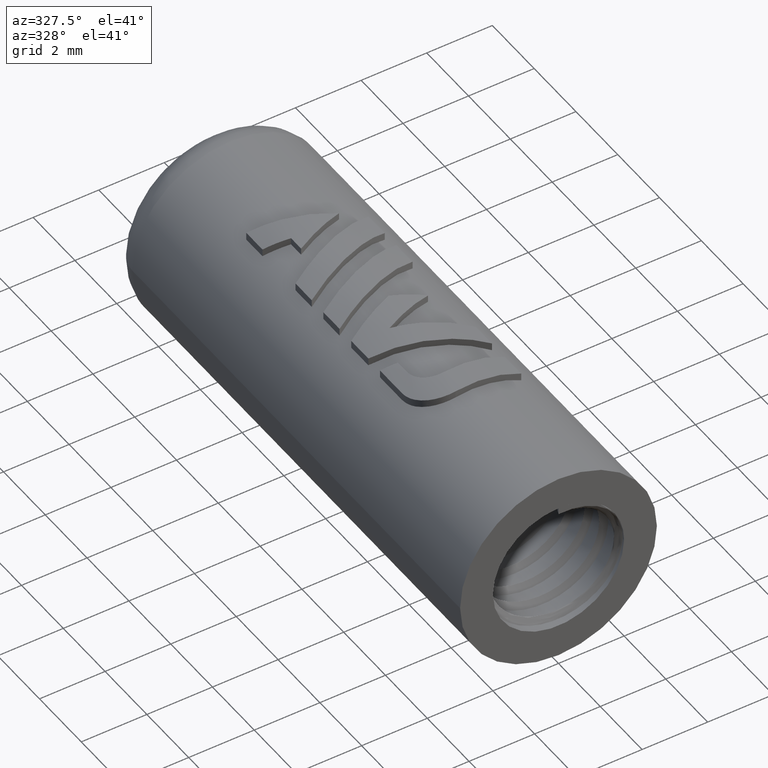
[diagram: clean part render]
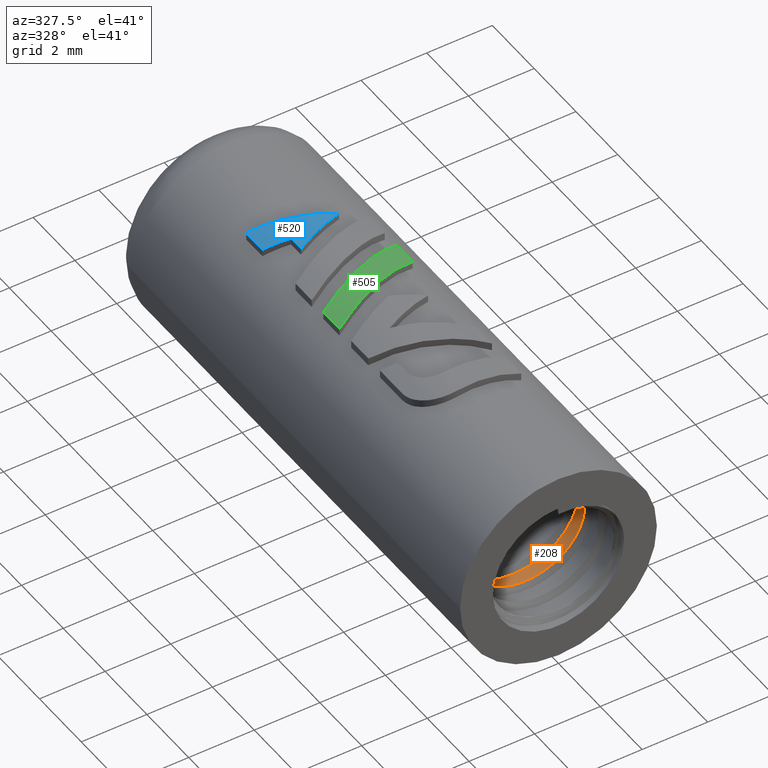
[diagram: same view with three faces highlighted in distinct colors, each labeled with its STEP entity id]
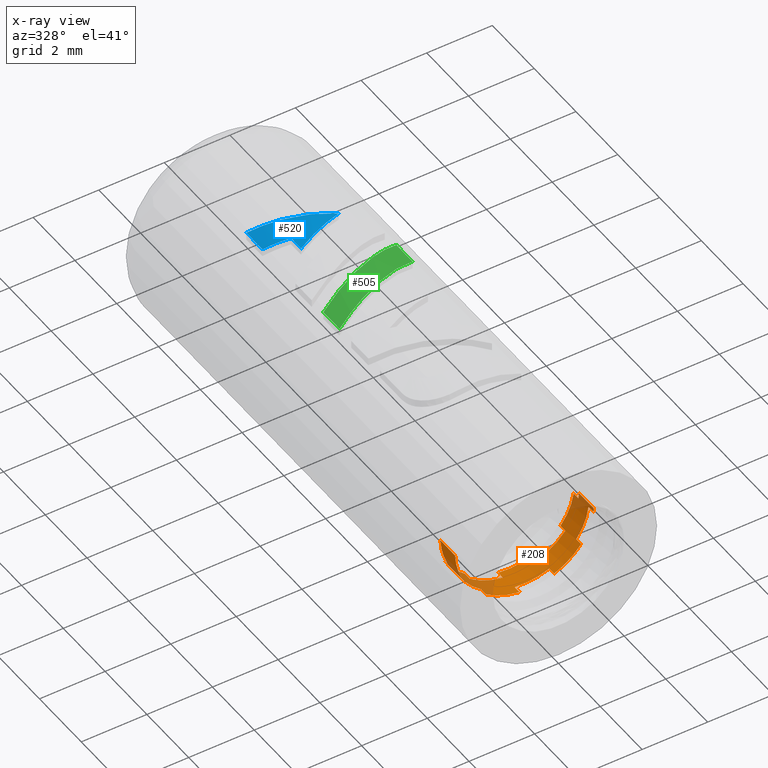
[diagram: x-ray of the same camera — body ghosted, the three highlighted faces saturated]
A machine part, auxiliary view with three faces highlighted in distinct colors.
The next image is the same camera in x-ray (body ghosted, the three faces saturated) — at least one of them is partly hidden behind the body in this view.
Their STEP definitions:

[orange] entity #208 — the highlighted cylindrical surface (partial cylindrical patch) has radius 2 mm, axis along (-0, 1, 0).
#208=ADVANCED_FACE('',(#698),#699,.F.);
#698=FACE_OUTER_BOUND('',#1504,.T.);
#699=CYLINDRICAL_SURFACE('',#1505,2.0);
#1504=EDGE_LOOP('',(#7025,#7026,#7027,#7028,#7029,#7030,#7031,#7032,#7033,#7034,#7035,#7036,#7037,#7038,#7039,#7040,#7041,#7042,#7043,#7044,#7045,#7046,#7047,#7048,#7049,#7050,#7051,#7052));
#1505=AXIS2_PLACEMENT_3D('',#7053,#7054,#7055);
#7025=ORIENTED_EDGE('',*,*,#9798,.F.);
#7026=ORIENTED_EDGE('',*,*,#9797,.T.);
#7027=ORIENTED_EDGE('',*,*,#9796,.F.);
#7028=ORIENTED_EDGE('',*,*,#9795,.F.);
#7029=ORIENTED_EDGE('',*,*,#9794,.T.);
#7030=ORIENTED_EDGE('',*,*,#9793,.T.);
#7031=ORIENTED_EDGE('',*,*,#9792,.F.);
#7032=ORIENTED_EDGE('',*,*,#9791,.F.);
#7033=ORIENTED_EDGE('',*,*,#9790,.T.);
#7034=ORIENTED_EDGE('',*,*,#9789,.T.);
#7035=ORIENTED_EDGE('',*,*,#9788,.F.);
#7036=ORIENTED_EDGE('',*,*,#9787,.F.);
#7037=ORIENTED_EDGE('',*,*,#9786,.T.);
#7038=ORIENTED_EDGE('',*,*,#9785,.T.);
#7039=ORIENTED_EDGE('',*,*,#9784,.F.);
#7040=ORIENTED_EDGE('',*,*,#9813,.F.);
#7041=ORIENTED_EDGE('',*,*,#9814,.F.);
#7042=ORIENTED_EDGE('',*,*,#9815,.T.);
#7043=ORIENTED_EDGE('',*,*,#9816,.T.);
#7044=ORIENTED_EDGE('',*,*,#9817,.F.);
#7045=ORIENTED_EDGE('',*,*,#9818,.F.);
#7046=ORIENTED_EDGE('',*,*,#9819,.T.);
#7047=ORIENTED_EDGE('',*,*,#9820,.T.);
#7048=ORIENTED_EDGE('',*,*,#9821,.F.);
#7049=ORIENTED_EDGE('',*,*,#9822,.F.);
#7050=ORIENTED_EDGE('',*,*,#9823,.T.);
#7051=ORIENTED_EDGE('',*,*,#9824,.T.);
#7052=ORIENTED_EDGE('',*,*,#9825,.F.);
#7053=CARTESIAN_POINT('',(0.0,0.0,0.0));
#7054=DIRECTION('',(-0.0,1.0,0.0));
#7055=DIRECTION('',(1.0,0.0,-6.12323399573677E-17));
#9784=EDGE_CURVE('',#11954,#11900,#11956,.T.);
#9785=EDGE_CURVE('',#11957,#11900,#11958,.T.);
#9786=EDGE_CURVE('',#11959,#11957,#11960,.T.);
#9787=EDGE_CURVE('',#11959,#11961,#11962,.T.);
#9788=EDGE_CURVE('',#11961,#11963,#11964,.T.);
#9789=EDGE_CURVE('',#11965,#11963,#11966,.T.);
#9790=EDGE_CURVE('',#11967,#11965,#11968,.T.);
#9791=EDGE_CURVE('',#11967,#11969,#11970,.T.);
#9792=EDGE_CURVE('',#11969,#11971,#11972,.T.);
#9793=EDGE_CURVE('',#11973,#11971,#11974,.T.);
#9794=EDGE_CURVE('',#11975,#11973,#11976,.T.);
#9795=EDGE_CURVE('',#11975,#11977,#11978,.T.);
#9796=EDGE_CURVE('',#11977,#11979,#11980,.T.);
#9797=EDGE_CURVE('',#11928,#11979,#11981,.T.);
#9798=EDGE_CURVE('',#11928,#11982,#11983,.T.);
#9813=EDGE_CURVE('',#12011,#11954,#12012,.T.);
#9814=EDGE_CURVE('',#12013,#12011,#12014,.T.);
#9815=EDGE_CURVE('',#12013,#12015,#12016,.T.);
#9816=EDGE_CURVE('',#12015,#12017,#12018,.T.);
#9817=EDGE_CURVE('',#12019,#12017,#12020,.T.);
#9818=EDGE_CURVE('',#12021,#12019,#12022,.T.);
#9819=EDGE_CURVE('',#12021,#12023,#12024,.T.);
#9820=EDGE_CURVE('',#12023,#12025,#12026,.T.);
#9821=EDGE_CURVE('',#12027,#12025,#12028,.T.);
#9822=EDGE_CURVE('',#12029,#12027,#12030,.T.);
#9823=EDGE_CURVE('',#12029,#12031,#12032,.T.);
#9824=EDGE_CURVE('',#12031,#12033,#12034,.T.);
#9825=EDGE_CURVE('',#11982,#12033,#12035,.T.);
#11900=VERTEX_POINT('',#15809);
#11928=VERTEX_POINT('',#15868);
#11954=VERTEX_POINT('',#15919);
#11956=LINE('',#15924,#15925);
#11957=VERTEX_POINT('',#15926);
#11958=B_SPLINE_CURVE_WITH_KNOTS('',3,(#15927,#15928,#15929,#15930),.UNSPECIFIED.,.F.,.F.,(4,4),(0.0,1.0),.UNSPECIFIED.);
#11959=VERTEX_POINT('',#15931);
#11960=LINE('',#15932,#15933);
#11961=VERTEX_POINT('',#15934);
#11962=B_SPLINE_CURVE_WITH_KNOTS('',3,(#15935,#15936,#15937,#15938),.UNSPECIFIED.,.F.,.F.,(4,4),(0.0,1.0),.UNSPECIFIED.);
#11963=VERTEX_POINT('',#15939);
#11964=LINE('',#15940,#15941);
#11965=VERTEX_POINT('',#15942);
#11966=B_SPLINE_CURVE_WITH_KNOTS('',3,(#15943,#15944,#15945,#15946),.UNSPECIFIED.,.F.,.F.,(4,4),(0.0,1.0),.UNSPECIFIED.);
#11967=VERTEX_POINT('',#15947);
#11968=LINE('',#15948,#15949);
#11969=VERTEX_POINT('',#15950);
#11970=B_SPLINE_CURVE_WITH_KNOTS('',3,(#15951,#15952,#15953,#15954),.UNSPECIFIED.,.F.,.F.,(4,4),(0.0,1.0),.UNSPECIFIED.);
#11971=VERTEX_POINT('',#15955);
#11972=LINE('',#15956,#15957);
#11973=VERTEX_POINT('',#15958);
#11974=B_SPLINE_CURVE_WITH_KNOTS('',3,(#15959,#15960,#15961,#15962),.UNSPECIFIED.,.F.,.F.,(4,4),(0.0,1.0),.UNSPECIFIED.);
#11975=VERTEX_POINT('',#15963);
#11976=LINE('',#15964,#15965);
#11977=VERTEX_POINT('',#15966);
#11978=B_SPLINE_CURVE_WITH_KNOTS('',3,(#15967,#15968,#15969,#15970),.UNSPECIFIED.,.F.,.F.,(4,4),(0.0,1.0),.UNSPECIFIED.);
#11979=VERTEX_POINT('',#15971);
#11980=LINE('',#15972,#15973);
#11981=B_SPLINE_CURVE_WITH_KNOTS('',3,(#15974,#15975,#15976,#15977),.UNSPECIFIED.,.F.,.F.,(4,4),(0.0,1.0),.UNSPECIFIED.);
#11982=VERTEX_POINT('',#15978);
#11983=LINE('',#15979,#15980);
#12011=VERTEX_POINT('',#16036);
#12012=B_SPLINE_CURVE_WITH_KNOTS('',3,(#16037,#16038,#16039,#16040),.UNSPECIFIED.,.F.,.F.,(4,4),(0.0,1.0),.UNSPECIFIED.);
#12013=VERTEX_POINT('',#16041);
#12014=LINE('',#16042,#16043);
#12015=VERTEX_POINT('',#16044);
#12016=B_SPLINE_CURVE_WITH_KNOTS('',3,(#16045,#16046,#16047,#16048),.UNSPECIFIED.,.F.,.F.,(4,4),(0.0,1.0),.UNSPECIFIED.);
#12017=VERTEX_POINT('',#16049);
#12018=LINE('',#16050,#16051);
#12019=VERTEX_POINT('',#16052);
#12020=B_SPLINE_CURVE_WITH_KNOTS('',3,(#16053,#16054,#16055,#16056),.UNSPECIFIED.,.F.,.F.,(4,4),(0.0,1.0),.UNSPECIFIED.);
#12021=VERTEX_POINT('',#16057);
#12022=LINE('',#16058,#16059);
#12023=VERTEX_POINT('',#16060);
#12024=B_SPLINE_CURVE_WITH_KNOTS('',3,(#16061,#16062,#16063,#16064),.UNSPECIFIED.,.F.,.F.,(4,4),(0.0,1.0),.UNSPECIFIED.);
#12025=VERTEX_POINT('',#16065);
#12026=LINE('',#16066,#16067);
#12027=VERTEX_POINT('',#16068);
#12028=B_SPLINE_CURVE_WITH_KNOTS('',3,(#16069,#16070,#16071,#16072),.UNSPECIFIED.,.F.,.F.,(4,4),(0.0,1.0),.UNSPECIFIED.);
#12029=VERTEX_POINT('',#16073);
#12030=LINE('',#16074,#16075);
#12031=VERTEX_POINT('',#16076);
#12032=B_SPLINE_CURVE_WITH_KNOTS('',3,(#16077,#16078,#16079,#16080),.UNSPECIFIED.,.F.,.F.,(4,4),(0.0,1.0),.UNSPECIFIED.);
#12033=VERTEX_POINT('',#16081);
#12034=LINE('',#16082,#16083);
#12035=B_SPLINE_CURVE_WITH_KNOTS('',3,(#16084,#16085,#16086,#16087),.UNSPECIFIED.,.F.,.F.,(4,4),(0.0,1.0),.UNSPECIFIED.);
#15809=CARTESIAN_POINT('',(-1.99983372703837,2.50952863046522,-1.47962922127108E-16));
#15868=CARTESIAN_POINT('',(1.99986662803466,2.15952877320998,1.3755659054943E-16));
#15919=CARTESIAN_POINT('',(-1.99989826058669,1.80952894795316,-1.34087110089378E-16));
#15924=CARTESIAN_POINT('',(-2.0,0.0,-1.22463677939047E-16));
#15925=VECTOR('',#20649,1.0);
#15926=CARTESIAN_POINT('',(-1.82731383372085,2.46289366147425,-0.81297241841549));
#15927=CARTESIAN_POINT('',(-1.82731383371829,2.46289366147427,-0.812972418413912));
#15928=CARTESIAN_POINT('',(-1.96985092419549,2.48242671992335,-0.492592549001985));
#15929=CARTESIAN_POINT('',(-2.02606181120273,2.50195977837243,-0.134289314809611));
#15930=CARTESIAN_POINT('',(-1.98848059676843,2.52149283682151,0.21434765283403));
#15931=CARTESIAN_POINT('',(-1.82731154181639,2.69383376908127,-0.812977569897545));
#15932=CARTESIAN_POINT('',(-1.82731154181374,0.0,-0.812977569896183));
#15933=VECTOR('',#20650,1000.0);
#15934=CARTESIAN_POINT('',(-1.1721459073758,2.63523459373407,-1.62051657561226));
#15935=CARTESIAN_POINT('',(-1.82731154181374,2.69383376908127,-0.812977569896181));
#15936=CARTESIAN_POINT('',(-1.68477354813583,2.6743007106322,-1.13335703747225));
#15937=CARTESIAN_POINT('',(-1.45626836039393,2.65476765218312,-1.41500619977498));
#15938=CARTESIAN_POINT('',(-1.17214590737379,2.63523459373405,-1.62051657561003));
#15939=CARTESIAN_POINT('',(-1.17215047586269,2.40429448612707,-1.62051327114184));
#15940=CARTESIAN_POINT('',(-1.17214590737384,0.0,-1.62051657561));
#15941=VECTOR('',#20651,1000.0);
#15942=CARTESIAN_POINT('',(-0.200107590801621,2.34569531077981,-1.9899640579959));
#15943=CARTESIAN_POINT('',(-0.200107590801812,2.34569531077984,-1.98996405799288));
#15944=CARTESIAN_POINT('',(-0.549004651213574,2.36522836922892,-1.95487952974906));
#15945=CARTESIAN_POINT('',(-0.888028602207985,2.38476142767799,-1.82602444795972));
#15946=CARTESIAN_POINT('',(-1.17215047586086,2.40429448612707,-1.62051327113948));
#15947=CARTESIAN_POINT('',(-0.200101980779584,2.57663541838687,-1.98996462212272));
#15948=CARTESIAN_POINT('',(-0.200101980778565,0.0,-1.98996462211983));
#15949=VECTOR('',#20652,1000.0);
#15950=CARTESIAN_POINT('',(0.826037578048162,2.51803624303962,-1.82144500868521));
#15951=CARTESIAN_POINT('',(-0.200101980778541,2.57663541838683,-1.98996462211983));
#15952=CARTESIAN_POINT('',(0.148795178540574,2.55710235993775,-2.02504816676767));
#15953=CARTESIAN_POINT('',(0.506686679884777,2.53756930148868,-1.96627279168312));
#15954=CARTESIAN_POINT('',(0.826037578047128,2.51803624303961,-1.8214450086824));
#15955=CARTESIAN_POINT('',(0.826032443104735,2.28709613543261,-1.82144733740791));
#15956=CARTESIAN_POINT('',(0.826037578047114,0.0,-1.82144500868241));
#15957=VECTOR('',#20653,1000.0);
#15958=CARTESIAN_POINT('',(1.62886260731935,2.22849696008537,-1.16051997246439));
#15959=CARTESIAN_POINT('',(1.62886260731662,2.22849696008539,-1.16051997246307));
#15960=CARTESIAN_POINT('',(1.4253905871487,2.24803001853446,-1.44610572122299));
#15961=CARTESIAN_POINT('',(1.14538374955688,2.26756307698353,-1.67662045470554));
#15962=CARTESIAN_POINT('',(0.826032443103506,2.2870961354326,-1.82144733740519));
#15963=CARTESIAN_POINT('',(1.62886587900088,2.45943706769242,-1.16051538044035));
#15964=CARTESIAN_POINT('',(1.62886587899875,0.0,-1.1605153804382));
#15965=VECTOR('',#20654,1000.0);
#15966=CARTESIAN_POINT('',(1.99134606745329,2.40083789234516,-0.185851660337524));
#15967=CARTESIAN_POINT('',(1.62886587899883,2.45943706769239,-1.16051538043809));
#15968=CARTESIAN_POINT('',(1.8323370940548,2.43990400924331,-0.874929058059502));
#15969=CARTESIAN_POINT('',(1.95876100758261,2.42037095079424,-0.534991026149068));
#15970=CARTESIAN_POINT('',(1.99134606745033,2.40083789234516,-0.185851660337218));
#15971=CARTESIAN_POINT('',(1.99134554350028,2.16989778473816,-0.185857274254947));
#15972=CARTESIAN_POINT('',(1.99134606745032,0.0,-0.185851660337329));
#15973=VECTOR('',#20655,1000.0);
#15974=CARTESIAN_POINT('',(1.81548750101265,2.11129860939097,0.839050137755101));
#15975=CARTESIAN_POINT('',(1.96259675428025,2.13083166784003,0.520743759419717));
#15976=CARTESIAN_POINT('',(2.02393158764376,2.1503647262891,0.163281999692984));
#15977=CARTESIAN_POINT('',(1.9913455434973,2.16989778473817,-0.185857274254856));
#15978=CARTESIAN_POINT('',(1.99992759615948,1.45952914322296,6.81695181208305E-17));
#15979=CARTESIAN_POINT('',(2.0,0.0,1.22465681890423E-16));
#15980=VECTOR('',#20656,1.0);
#16036=CARTESIAN_POINT('',(-1.80328903440548,1.7597035573076,-0.86495587078467));
#16037=CARTESIAN_POINT('',(-1.8032890344028,1.7597035573076,-0.864955870783378));
#16038=CARTESIAN_POINT('',(-1.95494029638922,1.77923661575668,-0.548788229137354));
#16039=CARTESIAN_POINT('',(-2.02138650385463,1.79876967420576,-0.192241215457124));
#16040=CARTESIAN_POINT('',(-1.99380230939845,1.81830273265483,0.157328799135499));
#16041=CARTESIAN_POINT('',(-1.80328659595159,1.99064366491462,-0.864960954536825));
#16042=CARTESIAN_POINT('',(-1.80328659594879,0.0,-0.864960954535772));
#16043=VECTOR('',#20664,1000.0);
#16044=CARTESIAN_POINT('',(-1.12526937515997,1.93204448956741,-1.65341127168621));
#16045=CARTESIAN_POINT('',(-1.80328659594882,1.99064366491461,-0.864960954535711));
#16046=CARTESIAN_POINT('',(-1.65163444263663,1.97111060646553,-1.18112816865167));
#16047=CARTESIAN_POINT('',(-1.41515920006453,1.95157754801646,-1.45611967961387));
#16048=CARTESIAN_POINT('',(-1.12526937515779,1.93204448956738,-1.65341127168409));
#16049=CARTESIAN_POINT('',(-1.12527403638134,1.70110438196035,-1.65340809936868));
#16050=CARTESIAN_POINT('',(-1.12526937515782,0.0,-1.65341127168407));
#16051=VECTOR('',#20665,1000.0);
#16052=CARTESIAN_POINT('',(-0.143052102504712,1.64250520661315,-1.9948774639012));
#16053=CARTESIAN_POINT('',(-0.143052102504683,1.64250520661316,-1.99487746389822));
#16054=CARTESIAN_POINT('',(-0.492810622132247,1.66203826506223,-1.96979637871523));
#16055=CARTESIAN_POINT('',(-0.835384767670691,1.68157132351131,-1.85070050868038));
#16056=CARTESIAN_POINT('',(-1.12527403638015,1.70110438196038,-1.65340809936589));
#16057=CARTESIAN_POINT('',(-0.143046478630556,1.87344531422017,-1.99487786717967));
#16058=CARTESIAN_POINT('',(-0.143046478630325,0.0,-1.9948778671767));
#16059=VECTOR('',#20666,1000.0);
#16060=CARTESIAN_POINT('',(0.877847647786606,1.81484613887299,-1.79704855451584));
#16061=CARTESIAN_POINT('',(-0.143046478630332,1.87344531422017,-1.9948778671767));
#16062=CARTESIAN_POINT('',(0.206712111703321,1.8539122557711,-2.01995796633522));
#16063=CARTESIAN_POINT('',(0.562774139011441,1.83437919732202,-1.95096011013704));
#16064=CARTESIAN_POINT('',(0.87784764778575,1.81484613887295,-1.79704855451293));
#16065=CARTESIAN_POINT('',(0.87784258162031,1.58390603126597,-1.79705102929942));
#16066=CARTESIAN_POINT('',(0.877847647785736,0.0,-1.79704855451294));
#16067=VECTOR('',#20667,1000.0);
#16068=CARTESIAN_POINT('',(1.66142102696181,1.52530685591871,-1.11340925592574));
#16069=CARTESIAN_POINT('',(1.66142102695915,1.52530685591872,-1.11340925592434));
#16070=CARTESIAN_POINT('',(1.46620884970047,1.5448399143678,-1.4047034177883));
#16071=CARTESIAN_POINT('',(1.19291652429339,1.56437297281688,-1.64314036191491));
#16072=CARTESIAN_POINT('',(0.877842581619261,1.58390603126596,-1.79705102929662));
#16073=CARTESIAN_POINT('',(1.66142416583117,1.75624696352572,-1.1134045721139));
#16074=CARTESIAN_POINT('',(1.66142416582865,0.0,-1.11340457211231));
#16075=VECTOR('',#20668,1000.0);
#16076=CARTESIAN_POINT('',(1.99585075390292,1.69764778817853,-0.128762448551809));
#16077=CARTESIAN_POINT('',(1.66142416582864,1.75624696352573,-1.11340457211231));
#16078=CARTESIAN_POINT('',(1.85663552188233,1.73671390507666,-0.82210985991576));
#16079=CARTESIAN_POINT('',(1.97327504977583,1.71718084662758,-0.478691613482192));
#16080=CARTESIAN_POINT('',(1.99585075389997,1.69764778817851,-0.128762448551211));
#16081=CARTESIAN_POINT('',(1.99585039089339,1.46670768057152,-0.128768075168697));
#16082=CARTESIAN_POINT('',(1.99585075389998,0.0,-0.128762448551111));
#16083=VECTOR('',#20669,1000.0);
#16084=CARTESIAN_POINT('',(1.79072093429945,1.40810850522428,0.890684307407342));
#16085=CARTESIAN_POINT('',(1.94688311992342,1.42764156367336,0.576720209671301));
#16086=CARTESIAN_POINT('',(2.01842708151991,1.44717462212243,0.221161026116888));
#16087=CARTESIAN_POINT('',(1.99585039089042,1.46670768057151,-0.128768075168331));
#20649=DIRECTION('',(-0.0,1.0,-0.0));
#20650=DIRECTION('',(0.0,-1.0,0.0));
#20651=DIRECTION('',(0.0,-1.0,0.0));
#20652=DIRECTION('',(0.0,-1.0,0.0));
#20653=DIRECTION('',(0.0,-1.0,0.0));
#20654=DIRECTION('',(0.0,-1.0,0.0));
#20655=DIRECTION('',(0.0,-1.0,0.0));
#20656=DIRECTION('',(0.0,-1.0,0.0));
#20664=DIRECTION('',(0.0,-1.0,0.0));
#20665=DIRECTION('',(0.0,-1.0,0.0));
#20666=DIRECTION('',(0.0,-1.0,0.0));
#20667=DIRECTION('',(0.0,-1.0,0.0));
#20668=DIRECTION('',(0.0,-1.0,0.0));
#20669=DIRECTION('',(0.0,-1.0,0.0));

[blue] entity #520 — the highlighted cylindrical surface (partial cylindrical patch) has radius 3.23 mm, axis along (-0, 1, 0).
#520=ADVANCED_FACE('',(#1325),#1326,.T.);
#1325=FACE_OUTER_BOUND('',#5468,.T.);
#1326=CYLINDRICAL_SURFACE('',#5469,3.23);
#5468=EDGE_LOOP('',(#9125,#9126,#9127,#9128,#9129));
#5469=AXIS2_PLACEMENT_3D('',#9130,#9131,#9132);
#9125=ORIENTED_EDGE('',*,*,#10736,.T.);
#9126=ORIENTED_EDGE('',*,*,#10745,.T.);
#9127=ORIENTED_EDGE('',*,*,#10740,.T.);
#9128=ORIENTED_EDGE('',*,*,#10732,.T.);
#9129=ORIENTED_EDGE('',*,*,#10743,.T.);
#9130=CARTESIAN_POINT('',(0.0,21.1617738229848,0.0));
#9131=DIRECTION('',(-0.0,1.0,0.0));
#9132=DIRECTION('',(1.0,0.0,-6.12323399573677E-17));
#10732=EDGE_CURVE('',#13551,#13552,#13553,.T.);
#10736=EDGE_CURVE('',#13559,#13560,#13561,.T.);
#10740=EDGE_CURVE('',#13567,#13551,#13568,.T.);
#10743=EDGE_CURVE('',#13552,#13559,#13572,.T.);
#10745=EDGE_CURVE('',#13560,#13567,#13574,.T.);
#13551=VERTEX_POINT('',#20058);
#13552=VERTEX_POINT('',#20059);
#13553=LINE('',#20060,#20061);
#13559=VERTEX_POINT('',#20070);
#13560=VERTEX_POINT('',#20071);
#13561=LINE('',#20072,#20073);
#13567=VERTEX_POINT('',#20082);
#13568=ELLIPSE('',#20083,3.48360417635097,3.23);
#13572=ELLIPSE('',#20088,3.48402300770412,3.23);
#13574=ELLIPSE('',#20090,3.48344167030515,3.23);
#20058=CARTESIAN_POINT('',(-1.50017849999999,12.58525659544,2.86048325779715));
#20059=CARTESIAN_POINT('',(-1.50017849999999,11.810736438508,2.86048325779715));
#20060=CARTESIAN_POINT('',(-1.5001785,21.1617738229848,2.86048325779714));
#20061=VECTOR('',#21059,1000.0);
#20070=CARTESIAN_POINT('',(-0.807717440271995,11.530760458664,3.12737790116265));
#20071=CARTESIAN_POINT('',(-0.807717440271994,11.048980467,3.12737790116265));
#20072=CARTESIAN_POINT('',(-0.807717440271994,21.1617738229848,3.12737790116265));
#20073=VECTOR('',#21063,1000.0);
#20082=CARTESIAN_POINT('',(0.747764306698006,11.677145876456,3.14225214482042));
#20083=AXIS2_PLACEMENT_3D('',#21067,#21068,#21069);
#20088=AXIS2_PLACEMENT_3D('',#21074,#21075,#21076);
#20090=AXIS2_PLACEMENT_3D('',#21080,#21081,#21082);
#21059=DIRECTION('',(0.0,-1.0,0.0));
#21063=DIRECTION('',(0.0,-1.0,0.0));
#21067=CARTESIAN_POINT('',(0.0,11.9792233048331,0.0));
#21068=DIRECTION('',(-0.374565060835224,-0.927200633736574,2.2709191493867E-16));
#21069=DIRECTION('',(0.927200633736574,-0.374565060835224,-5.62144709861807E-16));
#21074=CARTESIAN_POINT('',(0.0,11.2041839983702,0.0));
#21075=DIRECTION('',(0.374840859640753,0.927089170438195,-2.27064615763726E-16));
#21076=DIRECTION('',(0.927089170438195,-0.374840859640753,-5.61596050297215E-16));
#21080=CARTESIAN_POINT('',(0.0,11.3751689019216,0.0));
#21081=DIRECTION('',(-0.374457969736549,0.92724388857559,-2.27100994244814E-16));
#21082=DIRECTION('',(-0.92724388857559,-0.374457969736549,-5.62354191983406E-16));

[green] entity #505 — the highlighted cylindrical surface (partial cylindrical patch) has radius 3.23 mm, axis along (-0, 1, 0).
#505=ADVANCED_FACE('',(#1295),#1296,.T.);
#1295=FACE_OUTER_BOUND('',#5438,.T.);
#1296=CYLINDRICAL_SURFACE('',#5439,3.23);
#5438=EDGE_LOOP('',(#9019,#9020,#9021,#9022));
#5439=AXIS2_PLACEMENT_3D('',#9023,#9024,#9025);
#9019=ORIENTED_EDGE('',*,*,#10709,.F.);
#9020=ORIENTED_EDGE('',*,*,#10716,.F.);
#9021=ORIENTED_EDGE('',*,*,#10713,.F.);
#9022=ORIENTED_EDGE('',*,*,#10718,.F.);
#9023=CARTESIAN_POINT('',(0.0,18.6488897322871,0.0));
#9024=DIRECTION('',(-0.0,1.0,0.0));
#9025=DIRECTION('',(1.0,0.0,-6.12323399573677E-17));
#10709=EDGE_CURVE('',#13511,#13514,#13515,.T.);
#10713=EDGE_CURVE('',#13519,#13522,#13523,.T.);
#10716=EDGE_CURVE('',#13522,#13511,#13527,.F.);
#10718=EDGE_CURVE('',#13514,#13519,#13529,.T.);
#13511=VERTEX_POINT('',#20002);
#13514=VERTEX_POINT('',#20006);
#13515=ELLIPSE('',#20007,3.48371943323173,3.23);
#13519=VERTEX_POINT('',#20012);
#13522=VERTEX_POINT('',#20016);
#13523=ELLIPSE('',#20017,3.48371970233764,3.23);
#13527=LINE('',#20022,#20023);
#13529=LINE('',#20026,#20027);
#20002=CARTESIAN_POINT('',(-1.50017849999999,8.89672771273,2.86048325779714));
#20006=CARTESIAN_POINT('',(1.497983572168,10.108193193302,2.86163331290276));
#20007=AXIS2_PLACEMENT_3D('',#21020,#21021,#21022);
#20012=CARTESIAN_POINT('',(1.497983572168,9.33344834296801,2.86163331290276));
#20016=CARTESIAN_POINT('',(-1.50017849999999,8.12198219565001,2.86048325779714));
#20017=AXIS2_PLACEMENT_3D('',#21028,#21029,#21030);
#20022=CARTESIAN_POINT('',(-1.50017849999999,18.6488897322871,2.86048325779714));
#20023=VECTOR('',#21035,1000.0);
#20026=CARTESIAN_POINT('',(1.497983572168,18.6488897322871,2.86163331290276));
#20027=VECTOR('',#21037,1000.0);
#21020=CARTESIAN_POINT('',(0.0,9.50290390457679,0.0));
#21021=DIRECTION('',(-0.374640987210495,0.92716995782971,-2.27082886662474E-16));
#21022=DIRECTION('',(-0.92716995782971,-0.374640987210495,-5.61989845313958E-16));
#21028=CARTESIAN_POINT('',(0.0,8.72815872111385,0.0));
#21029=DIRECTION('',(0.374641164459303,-0.927169886208875,2.2708286912065E-16));
#21030=DIRECTION('',(-0.927169886208875,-0.374641164459303,-5.61989492602724E-16));
#21035=DIRECTION('',(0.0,-1.0,0.0));
#21037=DIRECTION('',(0.0,-1.0,0.0));